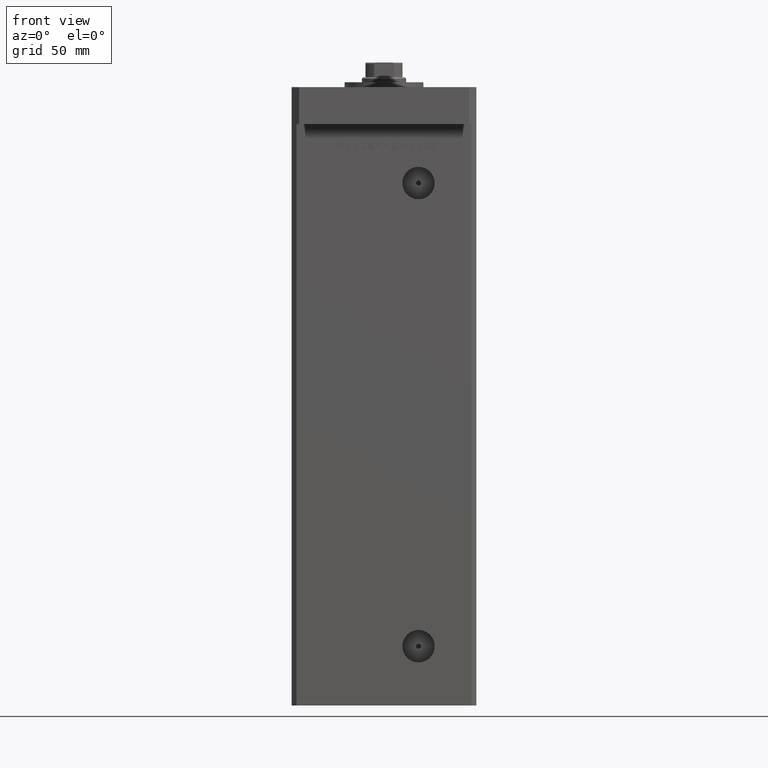
[diagram: clean part render]
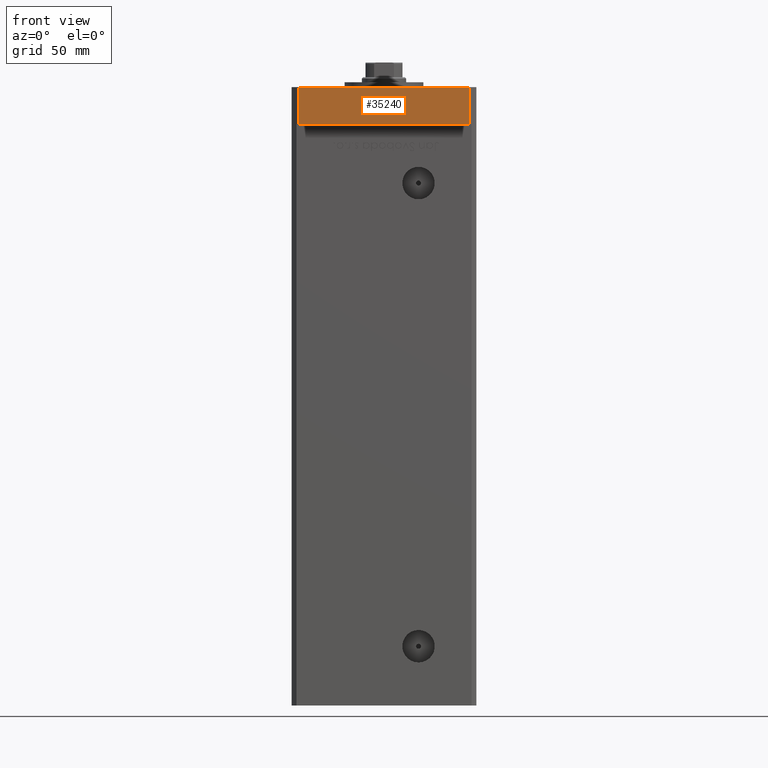
[diagram: same view with one face highlighted and labeled with its STEP entity id]
A machine part, front view. The second image highlights one B-rep face of the part: STEP entity #35240.
In plain terms, the highlighted planar face has unit normal (-0, 1, 0).
Its self-contained STEP definition (entity closure, byte-faithful):
#4067 = ORIENTED_EDGE ( 'NONE', *, *, #27028, .F. ) ;
#4895 = DIRECTION ( 'NONE',  ( -0.000000000000000000, -0.000000000000000000, -1.000000000000000000 ) ) ;
#5253 = VERTEX_POINT ( 'NONE', #41496 ) ;
#5575 = CARTESIAN_POINT ( 'NONE',  ( -34.49999999999999289, -60.00000000000002132, 15.00000000000000000 ) ) ;
#7103 = LINE ( 'NONE', #36099, #35936 ) ;
#9609 = VERTEX_POINT ( 'NONE', #23645 ) ;
#11041 = VERTEX_POINT ( 'NONE', #5575 ) ;
#11201 = VECTOR ( 'NONE', #42585, 1000.000000000000000 ) ;
#12039 = VECTOR ( 'NONE', #40114, 1000.000000000000000 ) ;
#12854 = ORIENTED_EDGE ( 'NONE', *, *, #50437, .F. ) ;
#18403 = CARTESIAN_POINT ( 'NONE',  ( 34.50000000000002132, -60.00000000000000711, 15.00000000000000000 ) ) ;
#22517 = LINE ( 'NONE', #39063, #11201 ) ;
#23645 = CARTESIAN_POINT ( 'NONE',  ( 34.50000000000002132, -60.00000000000000711, 0.000000000000000000 ) ) ;
#23854 = ORIENTED_EDGE ( 'NONE', *, *, #28820, .T. ) ;
#27028 = EDGE_CURVE ( 'NONE', #37382, #9609, #39022, .T. ) ;
#28820 = EDGE_CURVE ( 'NONE', #5253, #9609, #7103, .T. ) ;
#30390 = ORIENTED_EDGE ( 'NONE', *, *, #49829, .T. ) ;
#32687 = AXIS2_PLACEMENT_3D ( 'NONE', #45601, #53477, #32862 ) ;
#32862 = DIRECTION ( 'NONE',  ( -1.000000000000000000, -2.011273595335427833E-16, 0.000000000000000000 ) ) ;
#35240 = ADVANCED_FACE ( 'NONE', ( #36921 ), #44800, .F. ) ;
#35936 = VECTOR ( 'NONE', #52658, 1000.000000000000000 ) ;
#36039 = CARTESIAN_POINT ( 'NONE',  ( -34.49999999999999289, -60.00000000000002132, 15.00000000000000000 ) ) ;
#36099 = CARTESIAN_POINT ( 'NONE',  ( -34.49999999999999289, -60.00000000000002132, 0.000000000000000000 ) ) ;
#36921 = FACE_OUTER_BOUND ( 'NONE', #52767, .T. ) ;
#37382 = VERTEX_POINT ( 'NONE', #51297 ) ;
#39022 = LINE ( 'NONE', #18403, #45455 ) ;
#39063 = CARTESIAN_POINT ( 'NONE',  ( -34.49999999999999289, -60.00000000000002132, 15.00000000000000000 ) ) ;
#40114 = DIRECTION ( 'NONE',  ( 1.000000000000000000, 2.011273595335427833E-16, 0.000000000000000000 ) ) ;
#41496 = CARTESIAN_POINT ( 'NONE',  ( -34.49999999999999289, -60.00000000000002132, 0.000000000000000000 ) ) ;
#42585 = DIRECTION ( 'NONE',  ( -0.000000000000000000, -0.000000000000000000, -1.000000000000000000 ) ) ;
#44800 = PLANE ( 'NONE',  #32687 ) ;
#45455 = VECTOR ( 'NONE', #4895, 1000.000000000000000 ) ;
#45601 = CARTESIAN_POINT ( 'NONE',  ( -34.49999999999999289, -60.00000000000002132, 15.00000000000000000 ) ) ;
#49829 = EDGE_CURVE ( 'NONE', #11041, #5253, #22517, .T. ) ;
#50437 = EDGE_CURVE ( 'NONE', #11041, #37382, #52604, .T. ) ;
#51297 = CARTESIAN_POINT ( 'NONE',  ( 34.50000000000002132, -60.00000000000000711, 15.00000000000000000 ) ) ;
#52604 = LINE ( 'NONE', #36039, #12039 ) ;
#52658 = DIRECTION ( 'NONE',  ( 1.000000000000000000, 2.011273595335427833E-16, 0.000000000000000000 ) ) ;
#52767 = EDGE_LOOP ( 'NONE', ( #23854, #4067, #12854, #30390 ) ) ;
#53477 = DIRECTION ( 'NONE',  ( -2.011273595335427833E-16, 1.000000000000000000, 0.000000000000000000 ) ) ;